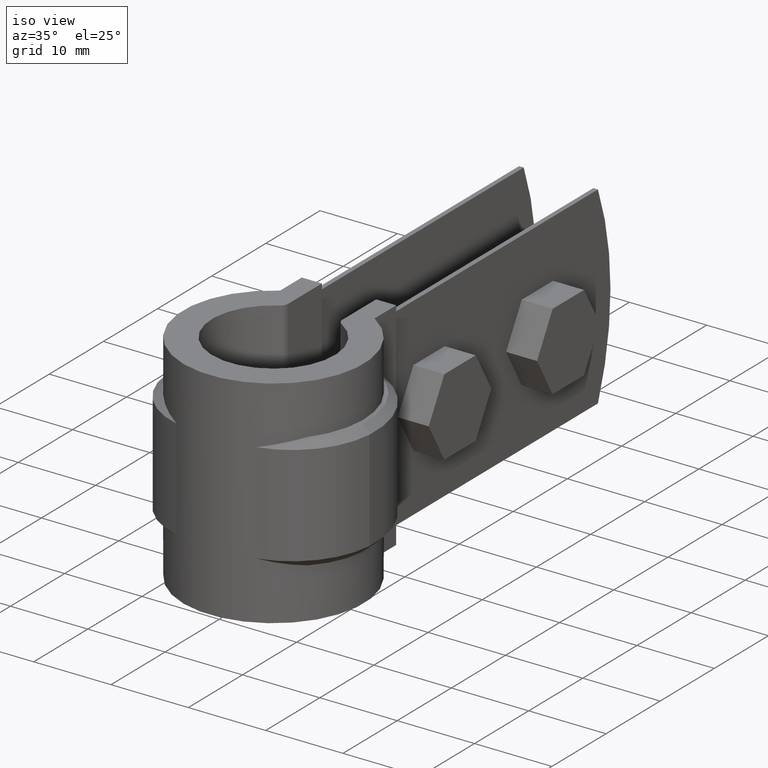
[diagram: clean part render]
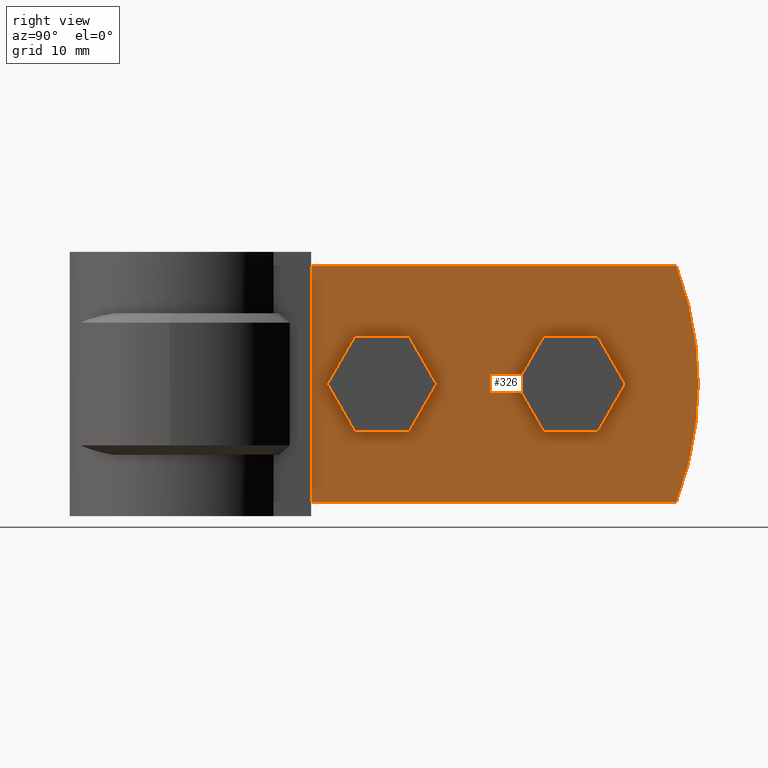
[diagram: tour spotlight — one face highlighted and labeled with its STEP entity id]
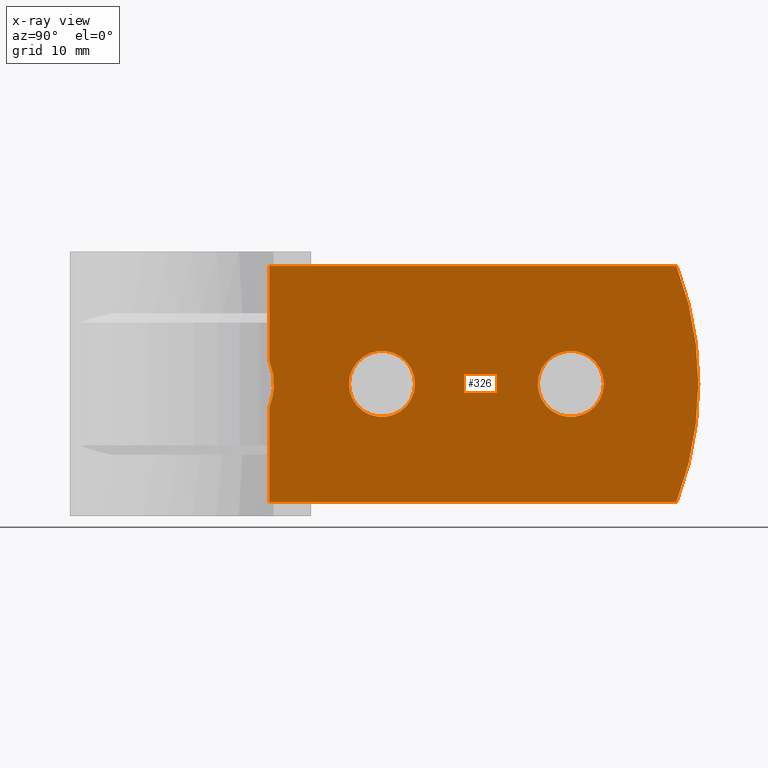
[diagram: x-ray of the same camera — body ghosted, this tour face saturated]
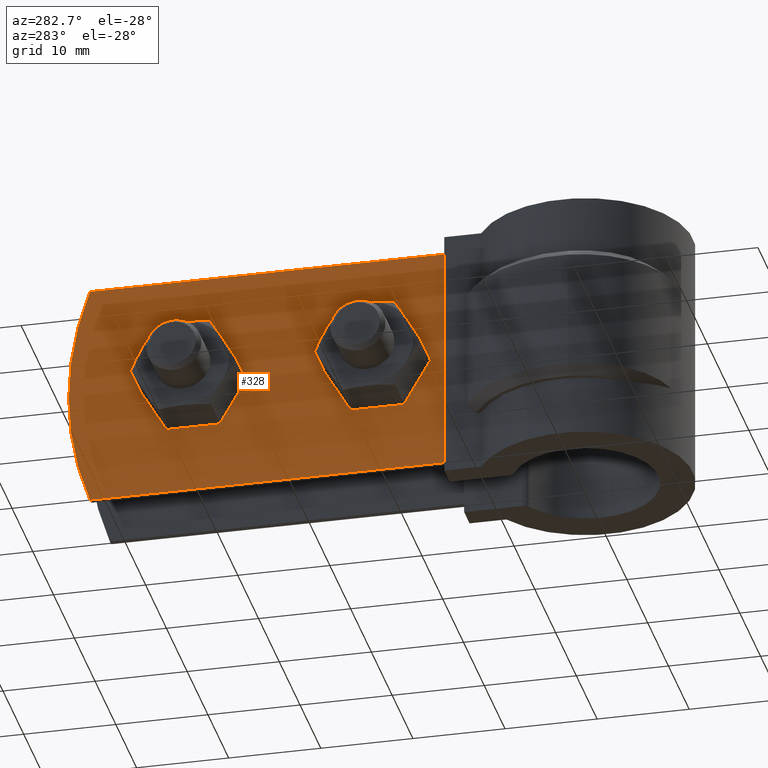
[diagram: tour spotlight — one face highlighted and labeled with its STEP entity id]
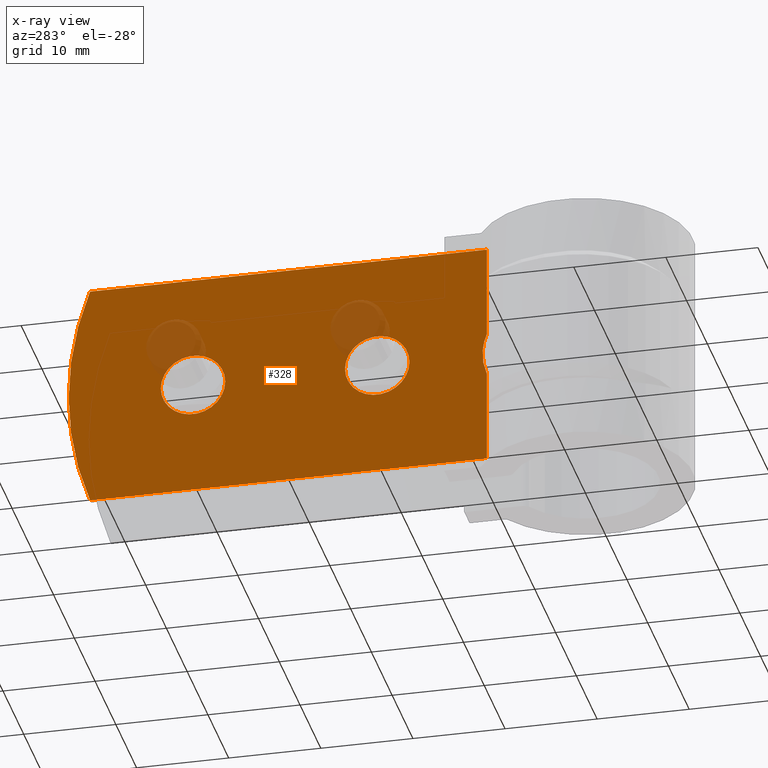
[diagram: x-ray of the same camera — body ghosted, this tour face saturated]
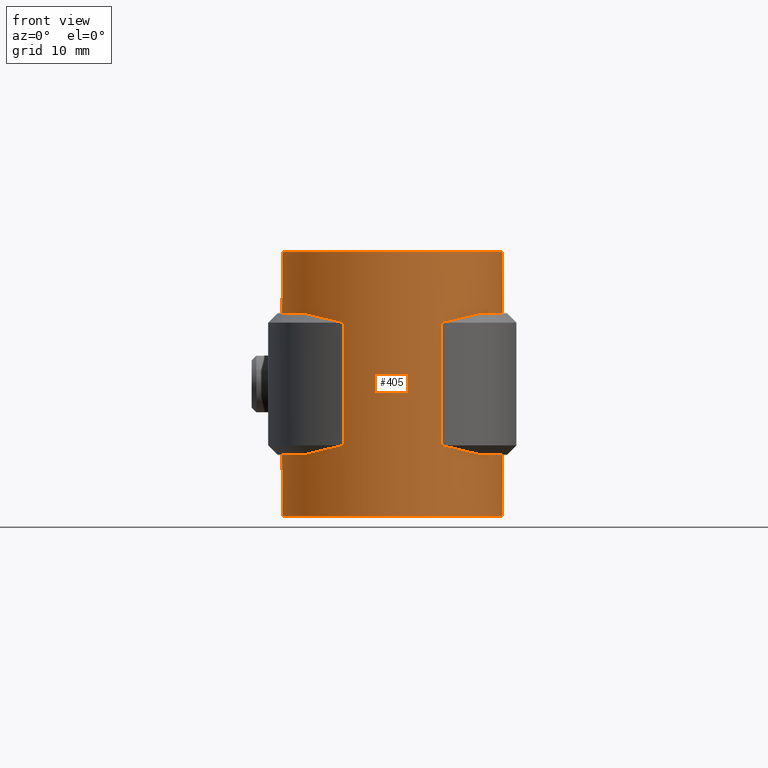
[diagram: tour spotlight — one face highlighted and labeled with its STEP entity id]
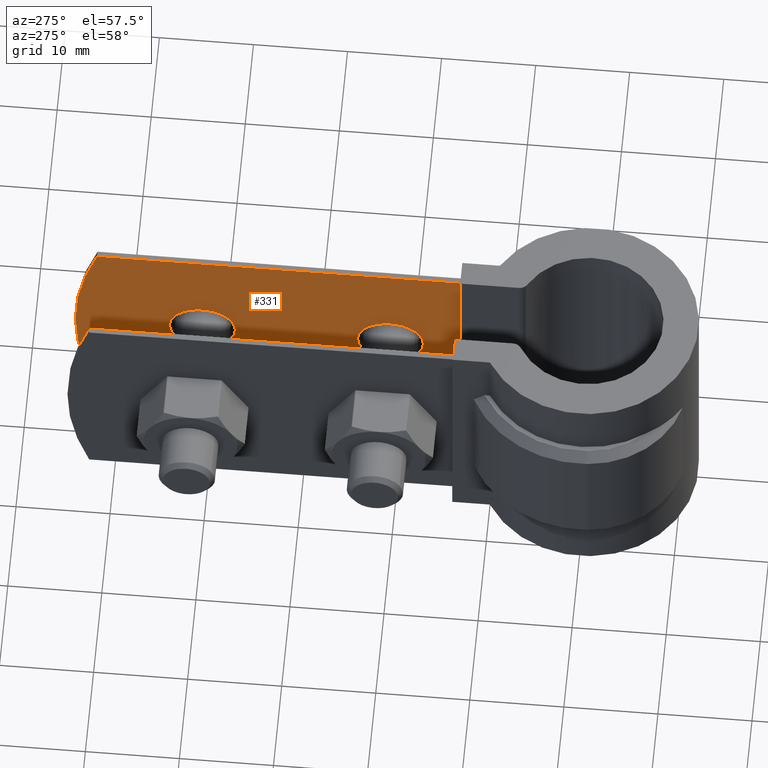
[diagram: tour spotlight — one face highlighted and labeled with its STEP entity id]
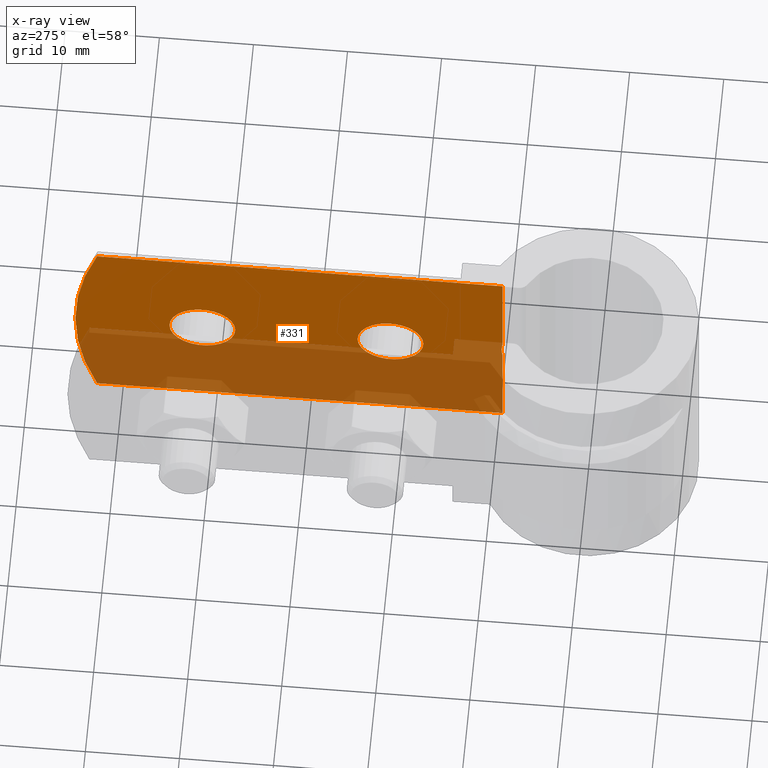
[diagram: x-ray of the same camera — body ghosted, this tour face saturated]
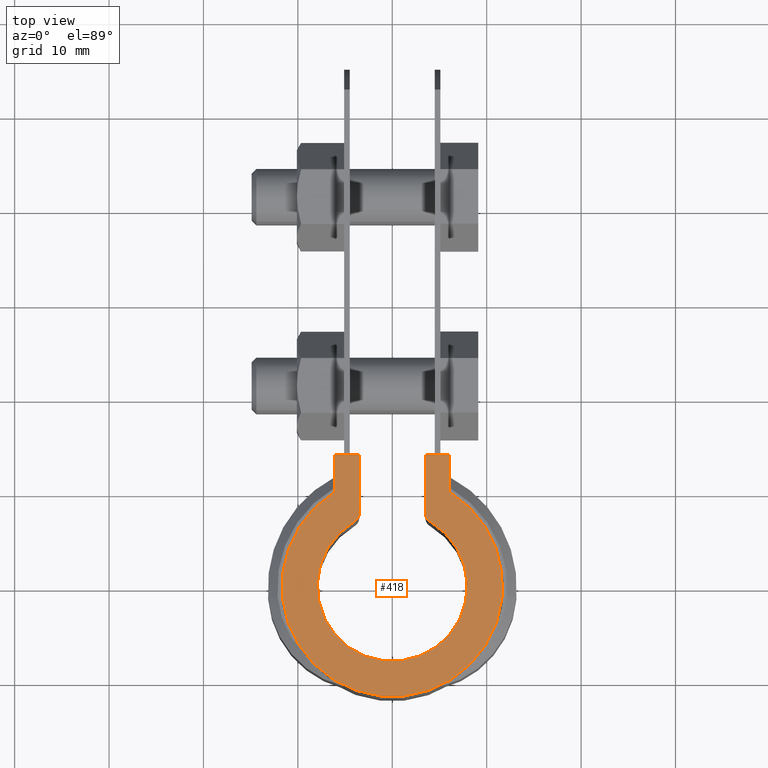
[diagram: tour spotlight — one face highlighted and labeled with its STEP entity id]
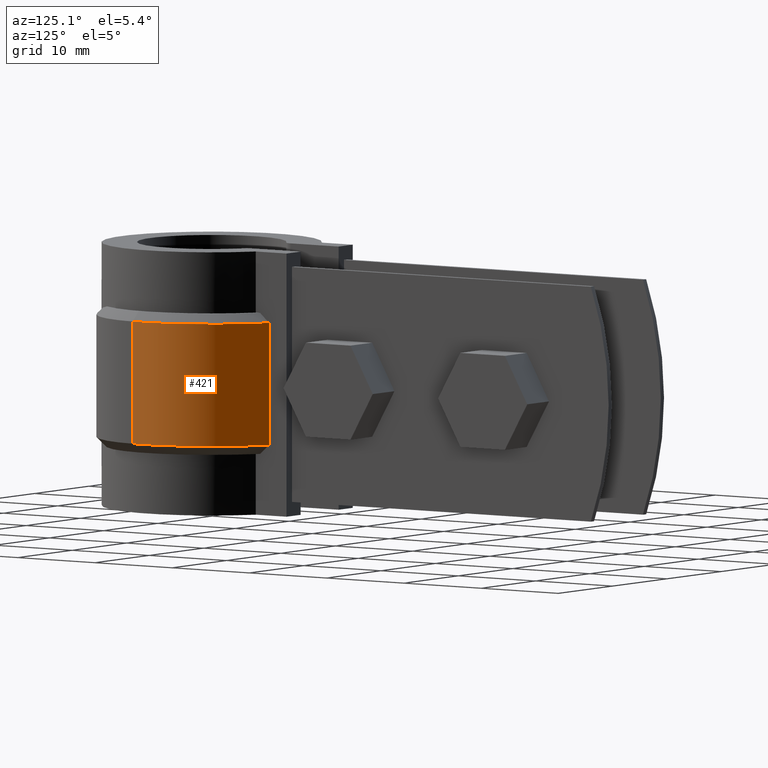
[diagram: tour spotlight — one face highlighted and labeled with its STEP entity id]
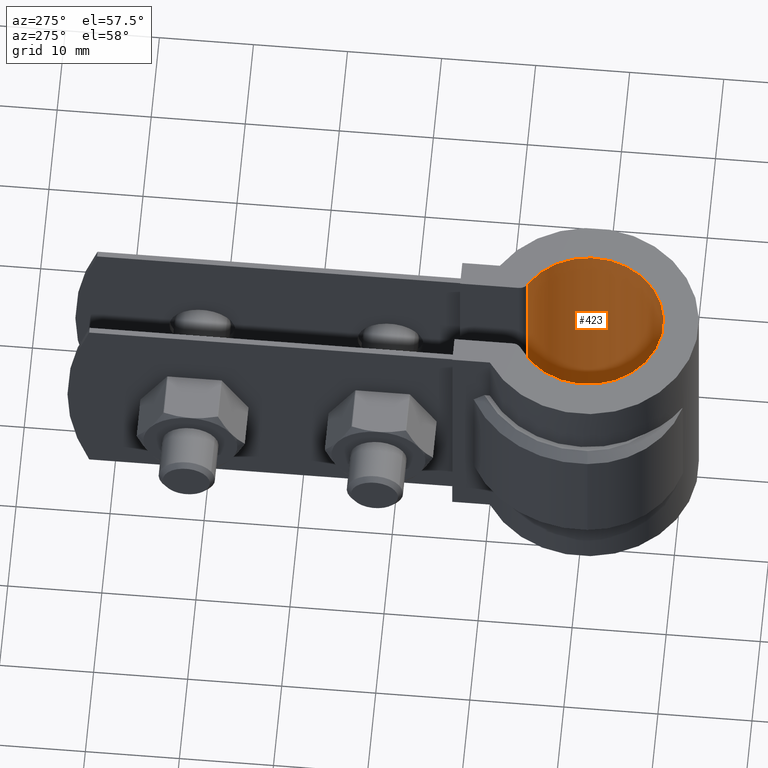
[diagram: tour spotlight — one face highlighted and labeled with its STEP entity id]
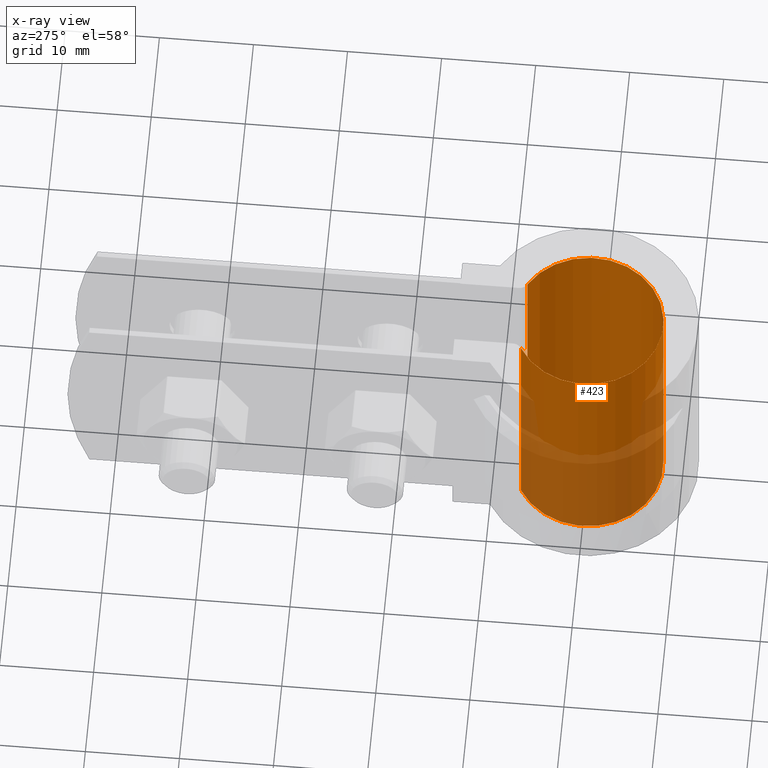
[diagram: x-ray of the same camera — body ghosted, this tour face saturated]
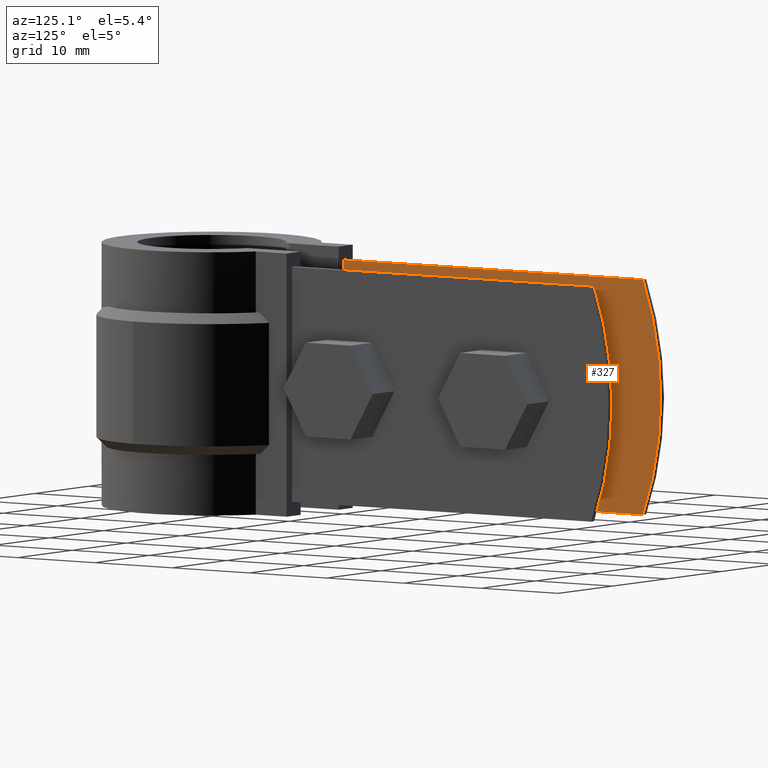
[diagram: tour spotlight — one face highlighted and labeled with its STEP entity id]
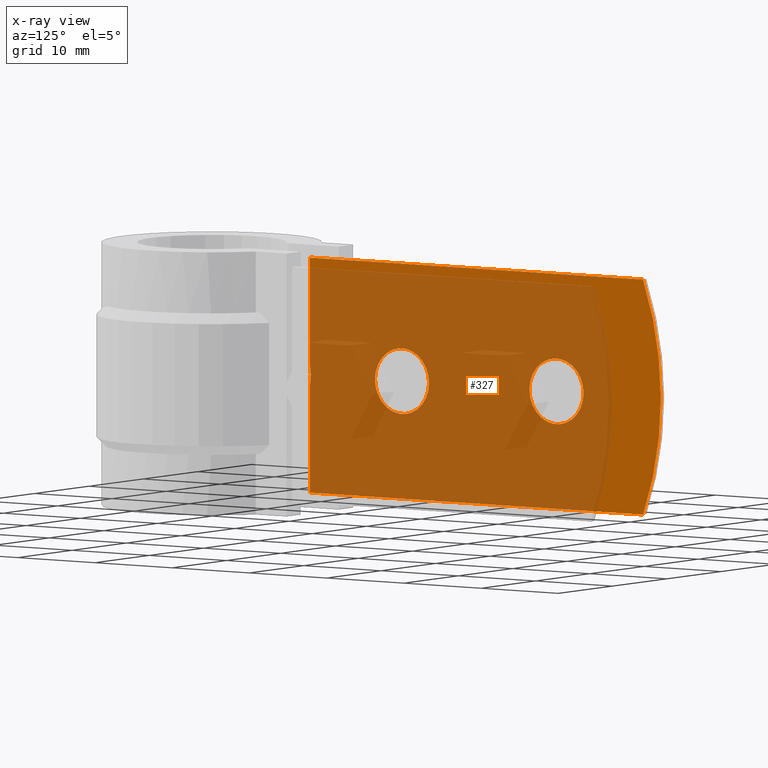
[diagram: x-ray of the same camera — body ghosted, this tour face saturated]
A machine part: a face-by-face anatomy tour. The part has 190 B-rep faces; the first image is the clean iso view, then the 8 largest visible faces are spotlighted one at a time (largest first), each with its STEP entity span.

Face 1 — right view, entity #326. An x-ray twin of the same camera follows (body ghosted, this face saturated) — the face is partly hidden behind the body. In plain terms, the highlighted planar face has unit normal (-1, 0, 0).
Definition (entity closure, byte-faithful):
#326 = ADVANCED_FACE( '', ( #528, #529, #530 ), #531, .F. );
#528 = FACE_BOUND( '', #938, .T. );
#529 = FACE_OUTER_BOUND( '', #939, .T. );
#530 = FACE_BOUND( '', #940, .T. );
#531 = PLANE( '', #941 );
#938 = EDGE_LOOP( '', ( #2309 ) );
#939 = EDGE_LOOP( '', ( #2310, #2311, #2312, #2313, #2314, #2315 ) );
#940 = EDGE_LOOP( '', ( #2316 ) );
#941 = AXIS2_PLACEMENT_3D( '', #2317, #2318, #2319 );
#2309 = ORIENTED_EDGE( '', *, *, #4433, .F. );
#2310 = ORIENTED_EDGE( '', *, *, #4425, .T. );
#2311 = ORIENTED_EDGE( '', *, *, #4416, .T. );
#2312 = ORIENTED_EDGE( '', *, *, #4430, .T. );
#2313 = ORIENTED_EDGE( '', *, *, #4434, .T. );
#2314 = ORIENTED_EDGE( '', *, *, #4435, .F. );
#2315 = ORIENTED_EDGE( '', *, *, #4396, .F. );
#2316 = ORIENTED_EDGE( '', *, *, #4436, .F. );
#2317 = CARTESIAN_POINT( '', ( 5.10000000000000, 9.54618248306621, 0.000000000000000 ) );
#2318 = DIRECTION( '', ( -1.00000000000000, 6.12303176911189E-017, 0.000000000000000 ) );
#2319 = DIRECTION( '', ( 6.12303176911189E-017, 1.00000000000000, 0.000000000000000 ) );
#4396 = EDGE_CURVE( '', #4918, #4920, #4921, .T. );
#4416 = EDGE_CURVE( '', #4958, #4956, #4959, .T. );
#4425 = EDGE_CURVE( '', #4918, #4958, #4972, .T. );
#4430 = EDGE_CURVE( '', #4956, #4979, #4980, .T. );
#4433 = EDGE_CURVE( '', #4984, #4984, #4985, .F. );
#4434 = EDGE_CURVE( '', #4979, #4986, #4987, .T. );
#4435 = EDGE_CURVE( '', #4920, #4986, #4988, .T. );
#4436 = EDGE_CURVE( '', #4989, #4989, #4990, .F. );
#4918 = VERTEX_POINT( '', #5855 );
#4920 = VERTEX_POINT( '', #5857 );
#4921 = LINE( '', #5858, #5859 );
#4956 = VERTEX_POINT( '', #6002 );
#4958 = VERTEX_POINT( '', #6013 );
#4959 = B_SPLINE_CURVE_WITH_KNOTS( '', 3, ( #6014, #6015, #6016, #6017, #6018, #6019, #6020, #6021, #6022, #6023 ), .UNSPECIFIED., .F., .F., ( 4, 2, 2, 2, 4 ), ( 3.46944695195361E-018, 0.00122789731250864, 0.00245579462501728, 0.00368369193752592, 0.00491158925003456 ), .UNSPECIFIED. );
#4972 = LINE( '', #6154, #6155 );
#4979 = VERTEX_POINT( '', #6178 );
#4980 = LINE( '', #6179, #6180 );
#4984 = VERTEX_POINT( '', #6185 );
#4985 = CIRCLE( '', #6186, 3.50000000000000 );
#4986 = VERTEX_POINT( '', #6187 );
#4987 = LINE( '', #6188, #6189 );
#4988 = CIRCLE( '', #6190, 35.0000000000000 );
#4989 = VERTEX_POINT( '', #6191 );
#4990 = CIRCLE( '', #6192, 3.50000000000000 );
#5855 = CARTESIAN_POINT( '', ( 5.10000000000000, 9.54618248306621, 0.000000000000000 ) );
#5857 = CARTESIAN_POINT( '', ( 5.09999999999998, 52.6472181779583, 4.65872389190766E-031 ) );
#5858 = CARTESIAN_POINT( '', ( 5.10000000000000, 9.54618248306621, 0.000000000000000 ) );
#5859 = VECTOR( '', #8263, 1000.00000000000 );
#6002 = CARTESIAN_POINT( '', ( 5.10000000000000, 9.54618248306621, -14.9137184247947 ) );
#6013 = CARTESIAN_POINT( '', ( 5.10000000000000, 9.54618248306621, -10.0862815752053 ) );
#6014 = CARTESIAN_POINT( '', ( 5.10000000000000, 9.54618248306621, -10.0862815752053 ) );
#6015 = CARTESIAN_POINT( '', ( 5.10000000000000, 9.70232047986149, -10.4734165991022 ) );
#6016 = CARTESIAN_POINT( '', ( 5.09999999999994, 9.81833738479104, -10.8680846588988 ) );
#6017 = CARTESIAN_POINT( '', ( 5.09999999999994, 9.97519419553779, -11.6715358238912 ) );
#6018 = CARTESIAN_POINT( '', ( 5.10000000000000, 10.0160405807230, -12.0803177125371 ) );
#6019 = CARTESIAN_POINT( '', ( 5.10000000000000, 10.0164716174228, -12.9131389897759 ) );
#6020 = CARTESIAN_POINT( '', ( 5.10000000000000, 9.97563247072795, -13.3256423648655 ) );
#6021 = CARTESIAN_POINT( '', ( 5.10000000000000, 9.81856702657030, -14.1313135051362 ) );
#6022 = CARTESIAN_POINT( '', ( 5.10000000000000, 9.70233662319714, -14.5265433744420 ) );
#6023 = CARTESIAN_POINT( '', ( 5.10000000000000, 9.54618248306621, -14.9137184247947 ) );
#6154 = CARTESIAN_POINT( '', ( 5.10000000000000, 9.54618248306621, 0.000000000000000 ) );
#6155 = VECTOR( '', #8282, 1000.00000000000 );
#6178 = CARTESIAN_POINT( '', ( 5.10000000000000, 9.54618248306621, -25.0000000000000 ) );
#6179 = CARTESIAN_POINT( '', ( 5.10000000000000, 9.54618248306621, 0.000000000000000 ) );
#6180 = VECTOR( '', #8286, 1000.00000000000 );
#6185 = CARTESIAN_POINT( '', ( 5.10000000000000, 37.9554761014033, -12.5000000000000 ) );
#6186 = AXIS2_PLACEMENT_3D( '', #8291, #8292, #8293 );
#6187 = CARTESIAN_POINT( '', ( 5.09999999999998, 52.6472181779583, -25.0000000000000 ) );
#6188 = CARTESIAN_POINT( '', ( 5.10000000000000, 9.54618248306621, -25.0000000000000 ) );
#6189 = VECTOR( '', #8294, 1000.00000000000 );
#6190 = AXIS2_PLACEMENT_3D( '', #8295, #8296, #8297 );
#6191 = CARTESIAN_POINT( '', ( 5.10000000000000, 17.9554761014033, -12.5000000000000 ) );
#6192 = AXIS2_PLACEMENT_3D( '', #8298, #8299, #8300 );
#8263 = DIRECTION( '', ( 6.12303176911189E-017, 1.00000000000000, 0.000000000000000 ) );
#8282 = DIRECTION( '', ( 0.000000000000000, 0.000000000000000, -1.00000000000000 ) );
#8286 = DIRECTION( '', ( 0.000000000000000, 0.000000000000000, -1.00000000000000 ) );
#8291 = CARTESIAN_POINT( '', ( 5.10000000000000, 41.4554761014033, -12.5000000000000 ) );
#8292 = DIRECTION( '', ( -1.00000000000000, 6.12303176911189E-017, 0.000000000000000 ) );
#8293 = DIRECTION( '', ( -6.12303176911189E-017, -1.00000000000000, 0.000000000000000 ) );
#8294 = DIRECTION( '', ( 6.12303176911189E-017, 1.00000000000000, 0.000000000000000 ) );
#8295 = CARTESIAN_POINT( '', ( 5.10000000000001, 19.9554761014033, -12.5000000000000 ) );
#8296 = DIRECTION( '', ( -1.00000000000000, 6.12303176911189E-017, 0.000000000000000 ) );
#8297 = DIRECTION( '', ( -6.12303176911189E-017, -1.00000000000000, 0.000000000000000 ) );
#8298 = CARTESIAN_POINT( '', ( 5.10000000000000, 21.4554761014033, -12.5000000000000 ) );
#8299 = DIRECTION( '', ( -1.00000000000000, 6.12303176911189E-017, 0.000000000000000 ) );
#8300 = DIRECTION( '', ( -6.12303176911189E-017, -1.00000000000000, 0.000000000000000 ) );

Face 2 — auxiliary view, entity #328. An x-ray twin of the same camera follows (body ghosted, this face saturated) — the face is partly hidden behind the body. In plain terms, the highlighted planar face has unit normal (1, -0, 0).
Definition (entity closure, byte-faithful):
#328 = ADVANCED_FACE( '', ( #536, #537, #538 ), #539, .F. );
#536 = FACE_BOUND( '', #946, .T. );
#537 = FACE_OUTER_BOUND( '', #947, .T. );
#538 = FACE_BOUND( '', #948, .T. );
#539 = PLANE( '', #949 );
#946 = EDGE_LOOP( '', ( #2331 ) );
#947 = EDGE_LOOP( '', ( #2332, #2333, #2334, #2335, #2336, #2337 ) );
#948 = EDGE_LOOP( '', ( #2338 ) );
#949 = AXIS2_PLACEMENT_3D( '', #2339, #2340, #2341 );
#2331 = ORIENTED_EDGE( '', *, *, #4443, .F. );
#2332 = ORIENTED_EDGE( '', *, *, #4444, .F. );
#2333 = ORIENTED_EDGE( '', *, *, #4420, .T. );
#2334 = ORIENTED_EDGE( '', *, *, #4429, .F. );
#2335 = ORIENTED_EDGE( '', *, *, #4393, .F. );
#2336 = ORIENTED_EDGE( '', *, *, #4445, .F. );
#2337 = ORIENTED_EDGE( '', *, *, #4446, .T. );
#2338 = ORIENTED_EDGE( '', *, *, #4447, .F. );
#2339 = CARTESIAN_POINT( '', ( -5.10000000000000, 54.9554761014033, 0.000000000000000 ) );
#2340 = DIRECTION( '', ( 1.00000000000000, -6.12303176911189E-017, 0.000000000000000 ) );
#2341 = DIRECTION( '', ( -6.12303176911189E-017, -1.00000000000000, 0.000000000000000 ) );
#4393 = EDGE_CURVE( '', #4912, #4915, #4916, .T. );
#4420 = EDGE_CURVE( '', #4964, #4962, #4965, .T. );
#4429 = EDGE_CURVE( '', #4915, #4962, #4978, .T. );
#4443 = EDGE_CURVE( '', #5002, #5002, #5003, .F. );
#4444 = EDGE_CURVE( '', #4964, #5004, #5005, .T. );
#4445 = EDGE_CURVE( '', #5006, #4912, #5007, .T. );
#4446 = EDGE_CURVE( '', #5006, #5004, #5008, .T. );
#4447 = EDGE_CURVE( '', #5009, #5009, #5010, .F. );
#4912 = VERTEX_POINT( '', #5847 );
#4915 = VERTEX_POINT( '', #5851 );
#4916 = LINE( '', #5852, #5853 );
#4962 = VERTEX_POINT( '', #6060 );
#4964 = VERTEX_POINT( '', #6071 );
#4965 = B_SPLINE_CURVE_WITH_KNOTS( '', 3, ( #6072, #6073, #6074, #6075, #6076, #6077, #6078, #6079, #6080, #6081 ), .UNSPECIFIED., .F., .F., ( 4, 2, 2, 2, 4 ), ( 0.000000000000000, 0.00122789731250863, 0.00245579462501726, 0.00368369193752589, 0.00491158925003452 ), .UNSPECIFIED. );
#4978 = LINE( '', #6176, #6177 );
#5002 = VERTEX_POINT( '', #6210 );
#5003 = CIRCLE( '', #6211, 3.50000000000000 );
#5004 = VERTEX_POINT( '', #6212 );
#5005 = LINE( '', #6213, #6214 );
#5006 = VERTEX_POINT( '', #6215 );
#5007 = CIRCLE( '', #6216, 35.0000000000000 );
#5008 = LINE( '', #6217, #6218 );
#5009 = VERTEX_POINT( '', #6219 );
#5010 = CIRCLE( '', #6220, 3.50000000000000 );
#5847 = CARTESIAN_POINT( '', ( -5.10000000000002, 52.6472181779583, 4.03010035805967E-031 ) );
#5851 = CARTESIAN_POINT( '', ( -5.10000000000000, 9.54618248306622, 0.000000000000000 ) );
#5852 = CARTESIAN_POINT( '', ( -5.10000000000000, 54.9554761014033, 0.000000000000000 ) );
#5853 = VECTOR( '', #8256, 1000.00000000000 );
#6060 = CARTESIAN_POINT( '', ( -5.10000000000000, 9.54618248306622, -10.0862815752053 ) );
#6071 = CARTESIAN_POINT( '', ( -5.10000000000000, 9.54618248306622, -14.9137184247947 ) );
#6072 = CARTESIAN_POINT( '', ( -5.10000000000000, 9.54618248306622, -14.9137184247947 ) );
#6073 = CARTESIAN_POINT( '', ( -5.10000000000000, 9.70232047986149, -14.5265834008979 ) );
#6074 = CARTESIAN_POINT( '', ( -5.09999999999994, 9.81833738479104, -14.1319153411013 ) );
#6075 = CARTESIAN_POINT( '', ( -5.09999999999994, 9.97519419553780, -13.3284641761089 ) );
#6076 = CARTESIAN_POINT( '', ( -5.10000000000000, 10.0160405807230, -12.9196822874630 ) );
#6077 = CARTESIAN_POINT( '', ( -5.10000000000000, 10.0164716174228, -12.0868610102241 ) );
#6078 = CARTESIAN_POINT( '', ( -5.10000000000000, 9.97563247072796, -11.6743576351346 ) );
#6079 = CARTESIAN_POINT( '', ( -5.10000000000000, 9.81856702657031, -10.8686864948638 ) );
#6080 = CARTESIAN_POINT( '', ( -5.10000000000000, 9.70233662319715, -10.4734566255580 ) );
#6081 = CARTESIAN_POINT( '', ( -5.10000000000000, 9.54618248306622, -10.0862815752053 ) );
#6176 = CARTESIAN_POINT( '', ( -5.10000000000000, 9.54618248306622, 0.000000000000000 ) );
#6177 = VECTOR( '', #8285, 1000.00000000000 );
#6210 = CARTESIAN_POINT( '', ( -5.09999999999999, 44.9554761014033, -12.5000000000000 ) );
#6211 = AXIS2_PLACEMENT_3D( '', #8312, #8313, #8314 );
#6212 = CARTESIAN_POINT( '', ( -5.10000000000000, 9.54618248306622, -25.0000000000000 ) );
#6213 = CARTESIAN_POINT( '', ( -5.10000000000000, 9.54618248306622, 0.000000000000000 ) );
#6214 = VECTOR( '', #8315, 1000.00000000000 );
#6215 = CARTESIAN_POINT( '', ( -5.10000000000002, 52.6472181779583, -25.0000000000000 ) );
#6216 = AXIS2_PLACEMENT_3D( '', #8316, #8317, #8318 );
#6217 = CARTESIAN_POINT( '', ( -5.10000000000000, 54.9554761014033, -25.0000000000000 ) );
#6218 = VECTOR( '', #8319, 1000.00000000000 );
#6219 = CARTESIAN_POINT( '', ( -5.09999999999999, 24.9554761014033, -12.5000000000000 ) );
#6220 = AXIS2_PLACEMENT_3D( '', #8320, #8321, #8322 );
#8256 = DIRECTION( '', ( -6.12303176911189E-017, -1.00000000000000, 0.000000000000000 ) );
#8285 = DIRECTION( '', ( 0.000000000000000, 0.000000000000000, -1.00000000000000 ) );
#8312 = CARTESIAN_POINT( '', ( -5.09999999999999, 41.4554761014033, -12.5000000000000 ) );
#8313 = DIRECTION( '', ( 1.00000000000000, -6.12303176911189E-017, 0.000000000000000 ) );
#8314 = DIRECTION( '', ( 6.12303176911189E-017, 1.00000000000000, 0.000000000000000 ) );
#8315 = DIRECTION( '', ( 0.000000000000000, 0.000000000000000, -1.00000000000000 ) );
#8316 = CARTESIAN_POINT( '', ( -5.09999999999999, 19.9554761014033, -12.5000000000000 ) );
#8317 = DIRECTION( '', ( 1.00000000000000, -6.12303176911189E-017, 0.000000000000000 ) );
#8318 = DIRECTION( '', ( 6.12303176911189E-017, 1.00000000000000, 0.000000000000000 ) );
#8319 = DIRECTION( '', ( -6.12303176911189E-017, -1.00000000000000, 0.000000000000000 ) );
#8320 = CARTESIAN_POINT( '', ( -5.09999999999999, 21.4554761014033, -12.5000000000000 ) );
#8321 = DIRECTION( '', ( 1.00000000000000, -6.12303176911189E-017, 0.000000000000000 ) );
#8322 = DIRECTION( '', ( 6.12303176911189E-017, 1.00000000000000, 0.000000000000000 ) );

Face 3 — front view, entity #405. In plain terms, the highlighted cylindrical surface (partial cylindrical patch) has radius 11.685 mm, axis along (0, 0, -1).
Definition (entity closure, byte-faithful):
#405 = ADVANCED_FACE( '', ( #699 ), #700, .T. );
#699 = FACE_OUTER_BOUND( '', #1685, .T. );
#700 = CYLINDRICAL_SURFACE( '', #1686, 11.6850000000000 );
#1685 = EDGE_LOOP( '', ( #3634, #3635, #3636, #3637, #3638, #3639, #3640, #3641, #3642, #3643, #3644, #3645, #3646, #3647, #3648, #3649 ) );
#1686 = AXIS2_PLACEMENT_3D( '', #3650, #3651, #3652 );
#3634 = ORIENTED_EDGE( '', *, *, #4531, .T. );
#3635 = ORIENTED_EDGE( '', *, *, #4686, .T. );
#3636 = ORIENTED_EDGE( '', *, *, #4687, .T. );
#3637 = ORIENTED_EDGE( '', *, *, #4688, .F. );
#3638 = ORIENTED_EDGE( '', *, *, #4689, .T. );
#3639 = ORIENTED_EDGE( '', *, *, #4690, .F. );
#3640 = ORIENTED_EDGE( '', *, *, #4525, .T. );
#3641 = ORIENTED_EDGE( '', *, *, #4691, .F. );
#3642 = ORIENTED_EDGE( '', *, *, #4541, .F. );
#3643 = ORIENTED_EDGE( '', *, *, #4692, .F. );
#3644 = ORIENTED_EDGE( '', *, *, #4693, .T. );
#3645 = ORIENTED_EDGE( '', *, *, #4694, .F. );
#3646 = ORIENTED_EDGE( '', *, *, #4695, .T. );
#3647 = ORIENTED_EDGE( '', *, *, #4696, .T. );
#3648 = ORIENTED_EDGE( '', *, *, #4535, .F. );
#3649 = ORIENTED_EDGE( '', *, *, #4680, .T. );
#3650 = CARTESIAN_POINT( '', ( 0.000000000000000, 1.04083408558608E-014, -26.5000000000000 ) );
#3651 = DIRECTION( '', ( 0.000000000000000, 0.000000000000000, -1.00000000000000 ) );
#3652 = DIRECTION( '', ( 0.000000000000000, 1.00000000000000, 0.000000000000000 ) );
#4525 = EDGE_CURVE( '', #5133, #5131, #5134, .T. );
#4531 = EDGE_CURVE( '', #5126, #5143, #5145, .T. );
#4535 = EDGE_CURVE( '', #5151, #5153, #5154, .T. );
#4541 = EDGE_CURVE( '', #5163, #5147, #5165, .T. );
#4680 = EDGE_CURVE( '', #5151, #5126, #5399, .T. );
#4686 = EDGE_CURVE( '', #5143, #5409, #5410, .F. );
#4687 = EDGE_CURVE( '', #5409, #5411, #5412, .T. );
#4688 = EDGE_CURVE( '', #5413, #5411, #5414, .F. );
#4689 = EDGE_CURVE( '', #5413, #5415, #5416, .T. );
#4690 = EDGE_CURVE( '', #5133, #5415, #5417, .F. );
#4691 = EDGE_CURVE( '', #5147, #5131, #5418, .T. );
#4692 = EDGE_CURVE( '', #5419, #5163, #5420, .F. );
#4693 = EDGE_CURVE( '', #5419, #5421, #5422, .T. );
#4694 = EDGE_CURVE( '', #5423, #5421, #5424, .T. );
#4695 = EDGE_CURVE( '', #5423, #5425, #5426, .T. );
#4696 = EDGE_CURVE( '', #5425, #5153, #5427, .F. );
#5126 = VERTEX_POINT( '', #6668 );
#5131 = VERTEX_POINT( '', #6675 );
#5133 = VERTEX_POINT( '', #6678 );
#5134 = LINE( '', #6679, #6680 );
#5143 = VERTEX_POINT( '', #6697 );
#5145 = LINE( '', #6700, #6701 );
#5147 = VERTEX_POINT( '', #6703 );
#5151 = VERTEX_POINT( '', #6709 );
#5153 = VERTEX_POINT( '', #6712 );
#5154 = LINE( '', #6713, #6714 );
#5163 = VERTEX_POINT( '', #6731 );
#5165 = LINE( '', #6734, #6735 );
#5399 = CIRCLE( '', #7673, 11.6850000000000 );
#5409 = VERTEX_POINT( '', #7685 );
#5410 = CIRCLE( '', #7686, 11.6850000000000 );
#5411 = VERTEX_POINT( '', #7687 );
#5412 = B_SPLINE_CURVE_WITH_KNOTS( '', 3, ( #7688, #7689, #7690, #7691, #7692, #7693, #7694, #7695 ), .UNSPECIFIED., .F., .F., ( 4, 2, 2, 4 ), ( 4.33680868994202E-018, 0.00277693447100946, 0.00416540170651419, 0.00555386894201892 ), .UNSPECIFIED. );
#5413 = VERTEX_POINT( '', #7696 );
#5414 = LINE( '', #7697, #7698 );
#5415 = VERTEX_POINT( '', #7699 );
#5416 = B_SPLINE_CURVE_WITH_KNOTS( '', 3, ( #7700, #7701, #7702, #7703, #7704, #7705, #7706, #7707 ), .UNSPECIFIED., .F., .F., ( 4, 2, 2, 4 ), ( 0.000000000000000, 0.00277665507141476, 0.00416498260712215, 0.00555331014282953 ), .UNSPECIFIED. );
#5417 = CIRCLE( '', #7708, 11.6850000000000 );
#5418 = CIRCLE( '', #7709, 11.6850000000000 );
#5419 = VERTEX_POINT( '', #7710 );
#5420 = CIRCLE( '', #7711, 11.6850000000000 );
#5421 = VERTEX_POINT( '', #7712 );
#5422 = B_SPLINE_CURVE_WITH_KNOTS( '', 3, ( #7713, #7714, #7715, #7716, #7717, #7718, #7719, #7720 ), .UNSPECIFIED., .F., .F., ( 4, 2, 2, 4 ), ( 6.82961315453726E-018, 0.00277693447100946, 0.00416540170651419, 0.00555386894201892 ), .UNSPECIFIED. );
#5423 = VERTEX_POINT( '', #7721 );
#5424 = LINE( '', #7722, #7723 );
#5425 = VERTEX_POINT( '', #7724 );
#5426 = B_SPLINE_CURVE_WITH_KNOTS( '', 3, ( #7725, #7726, #7727, #7728, #7729, #7730, #7731, #7732 ), .UNSPECIFIED., .F., .F., ( 4, 2, 2, 4 ), ( 0.000000000000000, 0.00277665507141476, 0.00416498260712215, 0.00555331014282953 ), .UNSPECIFIED. );
#5427 = CIRCLE( '', #7733, 11.6850000000000 );
#6668 = CARTESIAN_POINT( '', ( 6.09999999999998, 9.96640481818797, -26.5000000000000 ) );
#6675 = CARTESIAN_POINT( '', ( 6.09999999999998, 9.96640481818797, 1.50000000000000 ) );
#6678 = CARTESIAN_POINT( '', ( 6.09999999999998, 9.96640481818797, -5.00000000000000 ) );
#6679 = CARTESIAN_POINT( '', ( 6.09999999999998, 9.96640481818797, -26.5000000000000 ) );
#6680 = VECTOR( '', #8405, 1000.00000000000 );
#6697 = CARTESIAN_POINT( '', ( 6.09999999999998, 9.96640481818797, -20.0000000000000 ) );
#6700 = CARTESIAN_POINT( '', ( 6.09999999999998, 9.96640481818797, -26.5000000000000 ) );
#6701 = VECTOR( '', #8409, 1000.00000000000 );
#6703 = CARTESIAN_POINT( '', ( -6.10000000000003, 9.96640481818794, 1.50000000000000 ) );
#6709 = CARTESIAN_POINT( '', ( -6.10000000000003, 9.96640481818794, -26.5000000000000 ) );
#6712 = CARTESIAN_POINT( '', ( -6.10000000000003, 9.96640481818794, -20.0000000000000 ) );
#6713 = CARTESIAN_POINT( '', ( -6.10000000000003, 9.96640481818794, -26.5000000000000 ) );
#6714 = VECTOR( '', #8413, 1000.00000000000 );
#6731 = CARTESIAN_POINT( '', ( -6.10000000000003, 9.96640481818795, -5.00000000000000 ) );
#6734 = CARTESIAN_POINT( '', ( -6.10000000000003, 9.96640481818794, -26.5000000000000 ) );
#6735 = VECTOR( '', #8417, 1000.00000000000 );
#7673 = AXIS2_PLACEMENT_3D( '', #8550, #8551, #8552 );
#7685 = CARTESIAN_POINT( '', ( 9.36374855338443, -6.98995264855141, -20.0000000000000 ) );
#7686 = AXIS2_PLACEMENT_3D( '', #8564, #8565, #8566 );
#7687 = CARTESIAN_POINT( '', ( 5.17424711952811, -10.4769457260241, -19.0000000000000 ) );
#7688 = CARTESIAN_POINT( '', ( 9.36374855338443, -6.98995264855141, -20.0000000000000 ) );
#7689 = CARTESIAN_POINT( '', ( 8.80777141071310, -7.73474026402723, -19.8662567322832 ) );
#7690 = CARTESIAN_POINT( '', ( 8.17732976921467, -8.39659906995328, -19.7135949908877 ) );
#7691 = CARTESIAN_POINT( '', ( 7.12557712528804, -9.27218792441018, -19.4614185974445 ) );
#7692 = CARTESIAN_POINT( '', ( 6.75595603801261, -9.54504092295829, -19.3731627320375 ) );
#7693 = CARTESIAN_POINT( '', ( 5.98484098098964, -10.0465131583438, -19.1902773140702 ) );
#7694 = CARTESIAN_POINT( '', ( 5.58611941732225, -10.2735344355388, -19.0963034165744 ) );
#7695 = CARTESIAN_POINT( '', ( 5.17424711952811, -10.4769457260241, -19.0000000000000 ) );
#7696 = CARTESIAN_POINT( '', ( 5.17424711952811, -10.4769457260241, -6.00000000000000 ) );
#7697 = CARTESIAN_POINT( '', ( 5.17424711952811, -10.4769457260241, -12.5000000000000 ) );
#7698 = VECTOR( '', #8567, 1000.00000000000 );
#7699 = CARTESIAN_POINT( '', ( 9.36374855338443, -6.98995264855141, -4.99999999999999 ) );
#7700 = CARTESIAN_POINT( '', ( 5.17424711952811, -10.4769457260241, -6.00000000000000 ) );
#7701 = CARTESIAN_POINT( '', ( 5.99812038289876, -10.0700595999213, -5.80736308192648 ) );
#7702 = CARTESIAN_POINT( '', ( 6.76012271471013, -9.57453056652368, -5.62618566399187 ) );
#7703 = CARTESIAN_POINT( '', ( 7.81281671051148, -8.70097910983364, -5.37381316001744 ) );
#7704 = CARTESIAN_POINT( '', ( 8.14915820169521, -8.38717719181263, -5.29280727259839 ) );
#7705 = CARTESIAN_POINT( '', ( 8.78712108340776, -7.71621822583117, -5.13897519271562 ) );
#7706 = CARTESIAN_POINT( '', ( 9.08572746453961, -7.36239001678172, -5.06687945611871 ) );
#7707 = CARTESIAN_POINT( '', ( 9.36374855338443, -6.98995264855141, -5.00000000000000 ) );
#7708 = AXIS2_PLACEMENT_3D( '', #8568, #8569, #8570 );
#7709 = AXIS2_PLACEMENT_3D( '', #8571, #8572, #8573 );
#7710 = CARTESIAN_POINT( '', ( -9.36374855338443, -6.98995264855141, -4.99999999999999 ) );
#7711 = AXIS2_PLACEMENT_3D( '', #8574, #8575, #8576 );
#7712 = CARTESIAN_POINT( '', ( -5.17424711952811, -10.4769457260241, -6.00000000000000 ) );
#7713 = CARTESIAN_POINT( '', ( -9.36374855338443, -6.98995264855141, -5.00000000000000 ) );
#7714 = CARTESIAN_POINT( '', ( -8.80777141071310, -7.73474026402723, -5.13374326771682 ) );
#7715 = CARTESIAN_POINT( '', ( -8.17732976921466, -8.39659906995328, -5.28640500911235 ) );
#7716 = CARTESIAN_POINT( '', ( -7.12557712528804, -9.27218792441017, -5.53858140255554 ) );
#7717 = CARTESIAN_POINT( '', ( -6.75595603801261, -9.54504092295829, -5.62683726796246 ) );
#7718 = CARTESIAN_POINT( '', ( -5.98484098098964, -10.0465131583438, -5.80972268592979 ) );
#7719 = CARTESIAN_POINT( '', ( -5.58611941732225, -10.2735344355388, -5.90369658342556 ) );
#7720 = CARTESIAN_POINT( '', ( -5.17424711952811, -10.4769457260241, -6.00000000000000 ) );
#7721 = CARTESIAN_POINT( '', ( -5.17424711952811, -10.4769457260241, -19.0000000000000 ) );
#7722 = CARTESIAN_POINT( '', ( -5.17424711952811, -10.4769457260241, -12.5000000000000 ) );
#7723 = VECTOR( '', #8577, 1000.00000000000 );
#7724 = CARTESIAN_POINT( '', ( -9.36374855338443, -6.98995264855141, -20.0000000000000 ) );
#7725 = CARTESIAN_POINT( '', ( -5.17424711952811, -10.4769457260241, -19.0000000000000 ) );
#7726 = CARTESIAN_POINT( '', ( -5.99812038289877, -10.0700595999213, -19.1926369180735 ) );
#7727 = CARTESIAN_POINT( '', ( -6.76012271471013, -9.57453056652368, -19.3738143360081 ) );
#7728 = CARTESIAN_POINT( '', ( -7.81281671051148, -8.70097910983365, -19.6261868399826 ) );
#7729 = CARTESIAN_POINT( '', ( -8.14915820169521, -8.38717719181263, -19.7071927274016 ) );
#7730 = CARTESIAN_POINT( '', ( -8.78712108340776, -7.71621822583118, -19.8610248072844 ) );
#7731 = CARTESIAN_POINT( '', ( -9.08572746453961, -7.36239001678172, -19.9331205438813 ) );
#7732 = CARTESIAN_POINT( '', ( -9.36374855338443, -6.98995264855141, -20.0000000000000 ) );
#7733 = AXIS2_PLACEMENT_3D( '', #8578, #8579, #8580 );
#8405 = DIRECTION( '', ( 0.000000000000000, 0.000000000000000, 1.00000000000000 ) );
#8409 = DIRECTION( '', ( 0.000000000000000, 0.000000000000000, 1.00000000000000 ) );
#8413 = DIRECTION( '', ( 0.000000000000000, 0.000000000000000, 1.00000000000000 ) );
#8417 = DIRECTION( '', ( 0.000000000000000, 0.000000000000000, 1.00000000000000 ) );
#8550 = CARTESIAN_POINT( '', ( 0.000000000000000, 1.04083408558608E-014, -26.5000000000000 ) );
#8551 = DIRECTION( '', ( 0.000000000000000, 0.000000000000000, 1.00000000000000 ) );
#8552 = DIRECTION( '', ( 1.00000000000000, 0.000000000000000, 0.000000000000000 ) );
#8564 = CARTESIAN_POINT( '', ( 0.000000000000000, 1.04083408558608E-014, -20.0000000000000 ) );
#8565 = DIRECTION( '', ( 0.000000000000000, 0.000000000000000, 1.00000000000000 ) );
#8566 = DIRECTION( '', ( 1.00000000000000, 0.000000000000000, 0.000000000000000 ) );
#8567 = DIRECTION( '', ( 0.000000000000000, 0.000000000000000, 1.00000000000000 ) );
#8568 = CARTESIAN_POINT( '', ( 0.000000000000000, 1.04083408558608E-014, -5.00000000000000 ) );
#8569 = DIRECTION( '', ( 0.000000000000000, 0.000000000000000, 1.00000000000000 ) );
#8570 = DIRECTION( '', ( 1.00000000000000, 0.000000000000000, 0.000000000000000 ) );
#8571 = CARTESIAN_POINT( '', ( 0.000000000000000, 1.04083408558608E-014, 1.50000000000000 ) );
#8572 = DIRECTION( '', ( 0.000000000000000, 0.000000000000000, 1.00000000000000 ) );
#8573 = DIRECTION( '', ( 1.00000000000000, 0.000000000000000, 0.000000000000000 ) );
#8574 = CARTESIAN_POINT( '', ( 0.000000000000000, 1.04083408558608E-014, -5.00000000000000 ) );
#8575 = DIRECTION( '', ( 0.000000000000000, 0.000000000000000, 1.00000000000000 ) );
#8576 = DIRECTION( '', ( 1.00000000000000, 0.000000000000000, 0.000000000000000 ) );
#8577 = DIRECTION( '', ( 0.000000000000000, 0.000000000000000, 1.00000000000000 ) );
#8578 = CARTESIAN_POINT( '', ( 0.000000000000000, 1.04083408558608E-014, -20.0000000000000 ) );
#8579 = DIRECTION( '', ( 0.000000000000000, 0.000000000000000, 1.00000000000000 ) );
#8580 = DIRECTION( '', ( 1.00000000000000, 0.000000000000000, 0.000000000000000 ) );

Face 4 — auxiliary view, entity #331. An x-ray twin of the same camera follows (body ghosted, this face saturated) — the face is partly hidden behind the body. In plain terms, the highlighted planar face has unit normal (-1, 0, 0).
Definition (entity closure, byte-faithful):
#331 = ADVANCED_FACE( '', ( #544, #545, #546 ), #547, .T. );
#544 = FACE_OUTER_BOUND( '', #954, .T. );
#545 = FACE_BOUND( '', #955, .T. );
#546 = FACE_BOUND( '', #956, .T. );
#547 = PLANE( '', #957 );
#954 = EDGE_LOOP( '', ( #2364, #2365, #2366, #2367, #2368, #2369 ) );
#955 = EDGE_LOOP( '', ( #2370 ) );
#956 = EDGE_LOOP( '', ( #2371 ) );
#957 = AXIS2_PLACEMENT_3D( '', #2372, #2373, #2374 );
#2364 = ORIENTED_EDGE( '', *, *, #4457, .F. );
#2365 = ORIENTED_EDGE( '', *, *, #4458, .F. );
#2366 = ORIENTED_EDGE( '', *, *, #4398, .T. );
#2367 = ORIENTED_EDGE( '', *, *, #4459, .T. );
#2368 = ORIENTED_EDGE( '', *, *, #4455, .F. );
#2369 = ORIENTED_EDGE( '', *, *, #4460, .F. );
#2370 = ORIENTED_EDGE( '', *, *, #4461, .T. );
#2371 = ORIENTED_EDGE( '', *, *, #4462, .T. );
#2372 = CARTESIAN_POINT( '', ( 4.50000000000000, 9.54618248306621, 0.000000000000000 ) );
#2373 = DIRECTION( '', ( -1.00000000000000, 6.12303176911189E-017, 0.000000000000000 ) );
#2374 = DIRECTION( '', ( 6.12303176911189E-017, 1.00000000000000, 0.000000000000000 ) );
#4398 = EDGE_CURVE( '', #4924, #4922, #4925, .T. );
#4455 = EDGE_CURVE( '', #5021, #5011, #5023, .T. );
#4457 = EDGE_CURVE( '', #5025, #5026, #5027, .T. );
#4458 = EDGE_CURVE( '', #4924, #5025, #5028, .T. );
#4459 = EDGE_CURVE( '', #4922, #5011, #5029, .T. );
#4460 = EDGE_CURVE( '', #5026, #5021, #5030, .T. );
#4461 = EDGE_CURVE( '', #5031, #5031, #5032, .F. );
#4462 = EDGE_CURVE( '', #5033, #5033, #5034, .F. );
#4922 = VERTEX_POINT( '', #5860 );
#4924 = VERTEX_POINT( '', #5863 );
#4925 = LINE( '', #5864, #5865 );
#5011 = VERTEX_POINT( '', #6221 );
#5021 = VERTEX_POINT( '', #6233 );
#5023 = LINE( '', #6235, #6236 );
#5025 = VERTEX_POINT( '', #6239 );
#5026 = VERTEX_POINT( '', #6240 );
#5027 = B_SPLINE_CURVE_WITH_KNOTS( '', 3, ( #6241, #6242, #6243, #6244, #6245 ), .UNSPECIFIED., .F., .F., ( 4, 1, 4 ), ( 1.73472347597681E-016, 0.00106141253973161, 0.00212282507946340 ), .UNSPECIFIED. );
#5028 = LINE( '', #6246, #6247 );
#5029 = CIRCLE( '', #6248, 35.0000000000000 );
#5030 = LINE( '', #6249, #6250 );
#5031 = VERTEX_POINT( '', #6251 );
#5032 = CIRCLE( '', #6252, 3.50000000000000 );
#5033 = VERTEX_POINT( '', #6253 );
#5034 = CIRCLE( '', #6254, 3.50000000000000 );
#5860 = CARTESIAN_POINT( '', ( 4.50000000000001, 52.6472181779583, 0.000000000000000 ) );
#5863 = CARTESIAN_POINT( '', ( 4.50000000000000, 9.54618248306621, 0.000000000000000 ) );
#5864 = CARTESIAN_POINT( '', ( 4.50000000000000, 9.54618248306621, 0.000000000000000 ) );
#5865 = VECTOR( '', #8265, 1000.00000000000 );
#6221 = CARTESIAN_POINT( '', ( 4.50000000000001, 52.6472181779584, -25.0000000000000 ) );
#6233 = CARTESIAN_POINT( '', ( 4.50000000000000, 9.54618248306621, -25.0000000000000 ) );
#6235 = CARTESIAN_POINT( '', ( 4.50000000000000, 9.54618248306621, -25.0000000000000 ) );
#6236 = VECTOR( '', #8340, 1000.00000000000 );
#6239 = CARTESIAN_POINT( '', ( 4.50000000000002, 9.54618248306623, -11.4385874602683 ) );
#6240 = CARTESIAN_POINT( '', ( 4.50000000000001, 9.54618248306623, -13.5614125397318 ) );
#6241 = CARTESIAN_POINT( '', ( 4.49999999999989, 9.54618248306632, -11.4385874602684 ) );
#6242 = CARTESIAN_POINT( '', ( 4.49999999999988, 9.60932021031336, -11.7887105883119 ) );
#6243 = CARTESIAN_POINT( '', ( 4.49999999999988, 9.67379157176176, -12.5000000000001 ) );
#6244 = CARTESIAN_POINT( '', ( 4.49999999999988, 9.60932021031334, -13.2112894116884 ) );
#6245 = CARTESIAN_POINT( '', ( 4.49999999999989, 9.54618248306626, -13.5614125397320 ) );
#6246 = CARTESIAN_POINT( '', ( 4.50000000000000, 9.54618248306621, 0.000000000000000 ) );
#6247 = VECTOR( '', #8342, 1000.00000000000 );
#6248 = AXIS2_PLACEMENT_3D( '', #8343, #8344, #8345 );
#6249 = CARTESIAN_POINT( '', ( 4.50000000000000, 9.54618248306621, 0.000000000000000 ) );
#6250 = VECTOR( '', #8346, 1000.00000000000 );
#6251 = CARTESIAN_POINT( '', ( 4.50000000000000, 37.9554761014033, -12.5000000000000 ) );
#6252 = AXIS2_PLACEMENT_3D( '', #8347, #8348, #8349 );
#6253 = CARTESIAN_POINT( '', ( 4.50000000000000, 17.9554761014033, -12.5000000000000 ) );
#6254 = AXIS2_PLACEMENT_3D( '', #8350, #8351, #8352 );
#8265 = DIRECTION( '', ( 6.12303176911189E-017, 1.00000000000000, 0.000000000000000 ) );
#8340 = DIRECTION( '', ( 6.12303176911189E-017, 1.00000000000000, 0.000000000000000 ) );
#8342 = DIRECTION( '', ( 0.000000000000000, 0.000000000000000, -1.00000000000000 ) );
#8343 = CARTESIAN_POINT( '', ( 4.50000000000000, 19.9554761014033, -12.5000000000000 ) );
#8344 = DIRECTION( '', ( -1.00000000000000, 6.12303176911189E-017, 0.000000000000000 ) );
#8345 = DIRECTION( '', ( -6.12303176911189E-017, -1.00000000000000, 0.000000000000000 ) );
#8346 = DIRECTION( '', ( 0.000000000000000, 0.000000000000000, -1.00000000000000 ) );
#8347 = CARTESIAN_POINT( '', ( 4.50000000000000, 41.4554761014033, -12.5000000000000 ) );
#8348 = DIRECTION( '', ( -1.00000000000000, 6.12303176911189E-017, 0.000000000000000 ) );
#8349 = DIRECTION( '', ( -6.12303176911189E-017, -1.00000000000000, 0.000000000000000 ) );
#8350 = CARTESIAN_POINT( '', ( 4.50000000000000, 21.4554761014033, -12.5000000000000 ) );
#8351 = DIRECTION( '', ( -1.00000000000000, 6.12303176911189E-017, 0.000000000000000 ) );
#8352 = DIRECTION( '', ( -6.12303176911189E-017, -1.00000000000000, 0.000000000000000 ) );

Face 5 — top view, entity #418. In plain terms, the highlighted planar face has unit normal (0, 0, 1).
Definition (entity closure, byte-faithful):
#418 = ADVANCED_FACE( '', ( #725 ), #726, .T. );
#725 = FACE_OUTER_BOUND( '', #1711, .T. );
#726 = PLANE( '', #1712 );
#1711 = EDGE_LOOP( '', ( #3737, #3738, #3739, #3740, #3741, #3742, #3743, #3744, #3745, #3746 ) );
#1712 = AXIS2_PLACEMENT_3D( '', #3747, #3748, #3749 );
#3737 = ORIENTED_EDGE( '', *, *, #4524, .T. );
#3738 = ORIENTED_EDGE( '', *, *, #4718, .T. );
#3739 = ORIENTED_EDGE( '', *, *, #4719, .T. );
#3740 = ORIENTED_EDGE( '', *, *, #4720, .T. );
#3741 = ORIENTED_EDGE( '', *, *, #4721, .F. );
#3742 = ORIENTED_EDGE( '', *, *, #4722, .T. );
#3743 = ORIENTED_EDGE( '', *, *, #4723, .T. );
#3744 = ORIENTED_EDGE( '', *, *, #4542, .T. );
#3745 = ORIENTED_EDGE( '', *, *, #4532, .T. );
#3746 = ORIENTED_EDGE( '', *, *, #4691, .T. );
#3747 = CARTESIAN_POINT( '', ( 0.000000000000000, 1.04083408558608E-014, 1.50000000000000 ) );
#3748 = DIRECTION( '', ( 0.000000000000000, 0.000000000000000, 1.00000000000000 ) );
#3749 = DIRECTION( '', ( 0.000000000000000, 1.00000000000000, 0.000000000000000 ) );
#4524 = EDGE_CURVE( '', #5131, #5129, #5132, .T. );
#4532 = EDGE_CURVE( '', #5146, #5147, #5148, .T. );
#4542 = EDGE_CURVE( '', #5166, #5146, #5167, .T. );
#4691 = EDGE_CURVE( '', #5147, #5131, #5418, .T. );
#4718 = EDGE_CURVE( '', #5129, #5457, #5458, .T. );
#4719 = EDGE_CURVE( '', #5457, #5459, #5460, .T. );
#4720 = EDGE_CURVE( '', #5459, #5461, #5462, .F. );
#4721 = EDGE_CURVE( '', #5463, #5461, #5464, .F. );
#4722 = EDGE_CURVE( '', #5463, #5465, #5466, .F. );
#4723 = EDGE_CURVE( '', #5465, #5166, #5467, .T. );
#5129 = VERTEX_POINT( '', #6672 );
#5131 = VERTEX_POINT( '', #6675 );
#5132 = LINE( '', #6676, #6677 );
#5146 = VERTEX_POINT( '', #6702 );
#5147 = VERTEX_POINT( '', #6703 );
#5148 = LINE( '', #6704, #6705 );
#5166 = VERTEX_POINT( '', #6736 );
#5167 = LINE( '', #6737, #6738 );
#5418 = CIRCLE( '', #7709, 11.6850000000000 );
#5457 = VERTEX_POINT( '', #7768 );
#5458 = LINE( '', #7769, #7770 );
#5459 = VERTEX_POINT( '', #7771 );
#5460 = LINE( '', #7772, #7773 );
#5461 = VERTEX_POINT( '', #7774 );
#5462 = CIRCLE( '', #7775, 1.00000000000000 );
#5463 = VERTEX_POINT( '', #7776 );
#5464 = CIRCLE( '', #7777, 7.94000000000000 );
#5465 = VERTEX_POINT( '', #7778 );
#5466 = CIRCLE( '', #7779, 1.00000000000000 );
#5467 = LINE( '', #7780, #7781 );
#6672 = CARTESIAN_POINT( '', ( 6.09999999999998, 13.9554761014037, 1.50000000000000 ) );
#6675 = CARTESIAN_POINT( '', ( 6.09999999999998, 9.96640481818797, 1.50000000000000 ) );
#6676 = CARTESIAN_POINT( '', ( 6.09999999999998, 9.96640481818798, 1.50000000000000 ) );
#6677 = VECTOR( '', #8404, 1000.00000000000 );
#6702 = CARTESIAN_POINT( '', ( -6.10000000000003, 13.9554761014037, 1.50000000000000 ) );
#6703 = CARTESIAN_POINT( '', ( -6.10000000000003, 9.96640481818794, 1.50000000000000 ) );
#6704 = CARTESIAN_POINT( '', ( -6.10000000000002, 15.1000000000000, 1.50000000000000 ) );
#6705 = VECTOR( '', #8410, 1000.00000000000 );
#6736 = CARTESIAN_POINT( '', ( -3.49999999999999, 13.9554761014037, 1.50000000000000 ) );
#6737 = CARTESIAN_POINT( '', ( 0.000000000000000, 13.9554761014037, 1.50000000000000 ) );
#6738 = VECTOR( '', #8418, 1000.00000000000 );
#7709 = AXIS2_PLACEMENT_3D( '', #8571, #8572, #8573 );
#7768 = CARTESIAN_POINT( '', ( 3.50000000000000, 13.9554761014037, 1.50000000000000 ) );
#7769 = CARTESIAN_POINT( '', ( 0.000000000000000, 13.9554761014037, 1.50000000000000 ) );
#7770 = VECTOR( '', #8634, 1000.00000000000 );
#7771 = CARTESIAN_POINT( '', ( 3.50000000000000, 7.72486893092692, 1.50000000000000 ) );
#7772 = CARTESIAN_POINT( '', ( 3.50000000000000, 15.1000000000000, 1.50000000000000 ) );
#7773 = VECTOR( '', #8635, 1000.00000000000 );
#7774 = CARTESIAN_POINT( '', ( 3.99664429530202, 6.86078963216552, 1.50000000000000 ) );
#7775 = AXIS2_PLACEMENT_3D( '', #8636, #8637, #8638 );
#7776 = CARTESIAN_POINT( '', ( -3.99664429530200, 6.86078963216552, 1.50000000000000 ) );
#7777 = AXIS2_PLACEMENT_3D( '', #8639, #8640, #8641 );
#7778 = CARTESIAN_POINT( '', ( -3.49999999999999, 7.72486893092692, 1.50000000000000 ) );
#7779 = AXIS2_PLACEMENT_3D( '', #8642, #8643, #8644 );
#7780 = CARTESIAN_POINT( '', ( -3.49999999999999, 7.12139206897081, 1.50000000000000 ) );
#7781 = VECTOR( '', #8645, 1000.00000000000 );
#8404 = DIRECTION( '', ( 6.07153216591883E-017, 1.00000000000000, 0.000000000000000 ) );
#8410 = DIRECTION( '', ( -6.07153216591883E-017, -1.00000000000000, 0.000000000000000 ) );
#8418 = DIRECTION( '', ( -1.00000000000000, 0.000000000000000, 0.000000000000000 ) );
#8571 = CARTESIAN_POINT( '', ( 0.000000000000000, 1.04083408558608E-014, 1.50000000000000 ) );
#8572 = DIRECTION( '', ( 0.000000000000000, 0.000000000000000, 1.00000000000000 ) );
#8573 = DIRECTION( '', ( 1.00000000000000, 0.000000000000000, 0.000000000000000 ) );
#8634 = DIRECTION( '', ( -1.00000000000000, 0.000000000000000, 0.000000000000000 ) );
#8635 = DIRECTION( '', ( -6.28837260041593E-017, -1.00000000000000, 0.000000000000000 ) );
#8636 = CARTESIAN_POINT( '', ( 4.50000000000000, 7.72486893092692, 1.50000000000000 ) );
#8637 = DIRECTION( '', ( 0.000000000000000, 0.000000000000000, -1.00000000000000 ) );
#8638 = DIRECTION( '', ( -1.00000000000000, 0.000000000000000, 0.000000000000000 ) );
#8639 = CARTESIAN_POINT( '', ( 0.000000000000000, 0.000000000000000, 1.50000000000000 ) );
#8640 = DIRECTION( '', ( 0.000000000000000, 0.000000000000000, -1.00000000000000 ) );
#8641 = DIRECTION( '', ( -1.00000000000000, 0.000000000000000, 0.000000000000000 ) );
#8642 = CARTESIAN_POINT( '', ( -4.49999999999999, 7.72486893092692, 1.50000000000000 ) );
#8643 = DIRECTION( '', ( 0.000000000000000, 0.000000000000000, -1.00000000000000 ) );
#8644 = DIRECTION( '', ( -1.00000000000000, 0.000000000000000, 0.000000000000000 ) );
#8645 = DIRECTION( '', ( 6.28837260041593E-017, 1.00000000000000, 0.000000000000000 ) );

Face 6 — auxiliary view, entity #421. In plain terms, the highlighted cylindrical surface (partial cylindrical patch) has radius 13.185 mm, axis along (0, 0, -1).
Definition (entity closure, byte-faithful):
#421 = ADVANCED_FACE( '', ( #731 ), #732, .T. );
#731 = FACE_OUTER_BOUND( '', #1717, .T. );
#732 = CYLINDRICAL_SURFACE( '', #1718, 13.1850000000000 );
#1717 = EDGE_LOOP( '', ( #3764, #3765, #3766, #3767 ) );
#1718 = AXIS2_PLACEMENT_3D( '', #3768, #3769, #3770 );
#3764 = ORIENTED_EDGE( '', *, *, #4528, .T. );
#3765 = ORIENTED_EDGE( '', *, *, #4706, .T. );
#3766 = ORIENTED_EDGE( '', *, *, #4724, .F. );
#3767 = ORIENTED_EDGE( '', *, *, #4697, .T. );
#3768 = CARTESIAN_POINT( '', ( 8.67361737988404E-016, 1.73472347597681E-015, -20.0000000000000 ) );
#3769 = DIRECTION( '', ( 0.000000000000000, 0.000000000000000, -1.00000000000000 ) );
#3770 = DIRECTION( '', ( 0.386803185437998, 0.922162293598593, 0.000000000000000 ) );
#4528 = EDGE_CURVE( '', #5139, #5137, #5140, .T. );
#4697 = EDGE_CURVE( '', #5428, #5139, #5429, .T. );
#4706 = EDGE_CURVE( '', #5137, #5435, #5441, .F. );
#4724 = EDGE_CURVE( '', #5428, #5435, #5468, .T. );
#5137 = VERTEX_POINT( '', #6684 );
#5139 = VERTEX_POINT( '', #6689 );
#5140 = LINE( '', #6690, #6691 );
#5428 = VERTEX_POINT( '', #7734 );
#5429 = CIRCLE( '', #7735, 13.1850000000000 );
#5435 = VERTEX_POINT( '', #7742 );
#5441 = CIRCLE( '', #7749, 13.1850000000000 );
#5468 = LINE( '', #7782, #7783 );
#6684 = CARTESIAN_POINT( '', ( 6.09999999999998, 11.6890643338122, -6.00000000000000 ) );
#6689 = CARTESIAN_POINT( '', ( 6.09999999999998, 11.6890643338122, -19.0000000000000 ) );
#6690 = CARTESIAN_POINT( '', ( 6.09999999999998, 11.6890643338122, -20.0000000000000 ) );
#6691 = VECTOR( '', #8407, 1000.00000000000 );
#7734 = CARTESIAN_POINT( '', ( 13.1454778625978, -1.02011605415861, -19.0000000000000 ) );
#7735 = AXIS2_PLACEMENT_3D( '', #8581, #8582, #8583 );
#7742 = CARTESIAN_POINT( '', ( 13.1454778625978, -1.02011605415861, -6.00000000000000 ) );
#7749 = AXIS2_PLACEMENT_3D( '', #8604, #8605, #8606 );
#7782 = CARTESIAN_POINT( '', ( 13.1454778625978, -1.02011605415861, -20.0000000000000 ) );
#7783 = VECTOR( '', #8646, 1000.00000000000 );
#8407 = DIRECTION( '', ( 0.000000000000000, 0.000000000000000, 1.00000000000000 ) );
#8581 = CARTESIAN_POINT( '', ( 8.67361737988404E-016, 1.73472347597681E-015, -19.0000000000000 ) );
#8582 = DIRECTION( '', ( 0.000000000000000, 0.000000000000000, 1.00000000000000 ) );
#8583 = DIRECTION( '', ( 1.00000000000000, 0.000000000000000, 0.000000000000000 ) );
#8604 = CARTESIAN_POINT( '', ( 8.67361737988404E-016, 1.73472347597681E-015, -6.00000000000000 ) );
#8605 = DIRECTION( '', ( 0.000000000000000, 0.000000000000000, 1.00000000000000 ) );
#8606 = DIRECTION( '', ( 1.00000000000000, 0.000000000000000, 0.000000000000000 ) );
#8646 = DIRECTION( '', ( 0.000000000000000, 0.000000000000000, 1.00000000000000 ) );

Face 7 — auxiliary view, entity #423. An x-ray twin of the same camera follows (body ghosted, this face saturated) — the face is partly hidden behind the body. In plain terms, the highlighted cylindrical surface (partial cylindrical patch) has radius 7.94 mm, axis along (0, 0, -1).
Definition (entity closure, byte-faithful):
#423 = ADVANCED_FACE( '', ( #735 ), #736, .F. );
#735 = FACE_OUTER_BOUND( '', #1721, .T. );
#736 = CYLINDRICAL_SURFACE( '', #1722, 7.94000000000000 );
#1721 = EDGE_LOOP( '', ( #3778, #3779, #3780, #3781 ) );
#1722 = AXIS2_PLACEMENT_3D( '', #3782, #3783, #3784 );
#3778 = ORIENTED_EDGE( '', *, *, #4683, .F. );
#3779 = ORIENTED_EDGE( '', *, *, #4725, .T. );
#3780 = ORIENTED_EDGE( '', *, *, #4721, .T. );
#3781 = ORIENTED_EDGE( '', *, *, #4726, .T. );
#3782 = CARTESIAN_POINT( '', ( 0.000000000000000, 0.000000000000000, -48.3949279539566 ) );
#3783 = DIRECTION( '', ( 0.000000000000000, 0.000000000000000, -1.00000000000000 ) );
#3784 = DIRECTION( '', ( -1.00000000000000, 0.000000000000000, 0.000000000000000 ) );
#4683 = EDGE_CURVE( '', #5402, #5404, #5405, .F. );
#4721 = EDGE_CURVE( '', #5463, #5461, #5464, .F. );
#4725 = EDGE_CURVE( '', #5402, #5463, #5469, .T. );
#4726 = EDGE_CURVE( '', #5461, #5404, #5470, .F. );
#5402 = VERTEX_POINT( '', #7677 );
#5404 = VERTEX_POINT( '', #7679 );
#5405 = CIRCLE( '', #7680, 7.94000000000000 );
#5461 = VERTEX_POINT( '', #7774 );
#5463 = VERTEX_POINT( '', #7776 );
#5464 = CIRCLE( '', #7777, 7.94000000000000 );
#5469 = LINE( '', #7784, #7785 );
#5470 = LINE( '', #7786, #7787 );
#7677 = CARTESIAN_POINT( '', ( -3.99664429530200, 6.86078963216552, -26.5000000000000 ) );
#7679 = CARTESIAN_POINT( '', ( 3.99664429530202, 6.86078963216552, -26.5000000000000 ) );
#7680 = AXIS2_PLACEMENT_3D( '', #8557, #8558, #8559 );
#7774 = CARTESIAN_POINT( '', ( 3.99664429530202, 6.86078963216552, 1.50000000000000 ) );
#7776 = CARTESIAN_POINT( '', ( -3.99664429530200, 6.86078963216552, 1.50000000000000 ) );
#7777 = AXIS2_PLACEMENT_3D( '', #8639, #8640, #8641 );
#7784 = CARTESIAN_POINT( '', ( -3.99664429530201, 6.86078963216552, -48.3949279539566 ) );
#7785 = VECTOR( '', #8647, 1000.00000000000 );
#7786 = CARTESIAN_POINT( '', ( 3.99664429530202, 6.86078963216552, -48.3949279539566 ) );
#7787 = VECTOR( '', #8648, 1000.00000000000 );
#8557 = CARTESIAN_POINT( '', ( 0.000000000000000, 0.000000000000000, -26.5000000000000 ) );
#8558 = DIRECTION( '', ( 0.000000000000000, 0.000000000000000, -1.00000000000000 ) );
#8559 = DIRECTION( '', ( -1.00000000000000, 0.000000000000000, 0.000000000000000 ) );
#8639 = CARTESIAN_POINT( '', ( 0.000000000000000, 0.000000000000000, 1.50000000000000 ) );
#8640 = DIRECTION( '', ( 0.000000000000000, 0.000000000000000, -1.00000000000000 ) );
#8641 = DIRECTION( '', ( -1.00000000000000, 0.000000000000000, 0.000000000000000 ) );
#8647 = DIRECTION( '', ( 0.000000000000000, 0.000000000000000, 1.00000000000000 ) );
#8648 = DIRECTION( '', ( 0.000000000000000, 0.000000000000000, 1.00000000000000 ) );

Face 8 — auxiliary view, entity #327. An x-ray twin of the same camera follows (body ghosted, this face saturated) — the face is partly hidden behind the body. In plain terms, the highlighted planar face has unit normal (1, -0, 0).
Definition (entity closure, byte-faithful):
#327 = ADVANCED_FACE( '', ( #532, #533, #534 ), #535, .T. );
#532 = FACE_OUTER_BOUND( '', #942, .T. );
#533 = FACE_BOUND( '', #943, .T. );
#534 = FACE_BOUND( '', #944, .T. );
#535 = PLANE( '', #945 );
#942 = EDGE_LOOP( '', ( #2320, #2321, #2322, #2323, #2324, #2325 ) );
#943 = EDGE_LOOP( '', ( #2326 ) );
#944 = EDGE_LOOP( '', ( #2327 ) );
#945 = AXIS2_PLACEMENT_3D( '', #2328, #2329, #2330 );
#2320 = ORIENTED_EDGE( '', *, *, #4437, .T. );
#2321 = ORIENTED_EDGE( '', *, *, #4438, .T. );
#2322 = ORIENTED_EDGE( '', *, *, #4439, .F. );
#2323 = ORIENTED_EDGE( '', *, *, #4440, .T. );
#2324 = ORIENTED_EDGE( '', *, *, #4402, .T. );
#2325 = ORIENTED_EDGE( '', *, *, #4427, .T. );
#2326 = ORIENTED_EDGE( '', *, *, #4441, .T. );
#2327 = ORIENTED_EDGE( '', *, *, #4442, .T. );
#2328 = CARTESIAN_POINT( '', ( -4.50000000000000, 54.9554761014033, 0.000000000000000 ) );
#2329 = DIRECTION( '', ( 1.00000000000000, -6.12303176911189E-017, 0.000000000000000 ) );
#2330 = DIRECTION( '', ( -6.12303176911189E-017, -1.00000000000000, 0.000000000000000 ) );
#4402 = EDGE_CURVE( '', #4913, #4930, #4932, .T. );
#4427 = EDGE_CURVE( '', #4930, #4974, #4976, .T. );
#4437 = EDGE_CURVE( '', #4974, #4991, #4992, .T. );
#4438 = EDGE_CURVE( '', #4991, #4993, #4994, .T. );
#4439 = EDGE_CURVE( '', #4995, #4993, #4996, .T. );
#4440 = EDGE_CURVE( '', #4995, #4913, #4997, .T. );
#4441 = EDGE_CURVE( '', #4998, #4998, #4999, .F. );
#4442 = EDGE_CURVE( '', #5000, #5000, #5001, .F. );
#4913 = VERTEX_POINT( '', #5848 );
#4930 = VERTEX_POINT( '', #5870 );
#4932 = LINE( '', #5872, #5873 );
#4974 = VERTEX_POINT( '', #6157 );
#4976 = LINE( '', #6172, #6173 );
#4991 = VERTEX_POINT( '', #6193 );
#4992 = B_SPLINE_CURVE_WITH_KNOTS( '', 3, ( #6194, #6195, #6196, #6197, #6198 ), .UNSPECIFIED., .F., .F., ( 4, 1, 4 ), ( 1.14491749414469E-016, 0.00106141253973194, 0.00212282507946377 ), .UNSPECIFIED. );
#4993 = VERTEX_POINT( '', #6199 );
#4994 = LINE( '', #6200, #6201 );
#4995 = VERTEX_POINT( '', #6202 );
#4996 = LINE( '', #6203, #6204 );
#4997 = CIRCLE( '', #6205, 35.0000000000000 );
#4998 = VERTEX_POINT( '', #6206 );
#4999 = CIRCLE( '', #6207, 3.50000000000000 );
#5000 = VERTEX_POINT( '', #6208 );
#5001 = CIRCLE( '', #6209, 3.50000000000000 );
#5848 = CARTESIAN_POINT( '', ( -4.49999999999999, 52.6472181779583, 0.000000000000000 ) );
#5870 = CARTESIAN_POINT( '', ( -4.50000000000000, 9.54618248306622, 0.000000000000000 ) );
#5872 = CARTESIAN_POINT( '', ( -4.50000000000000, 54.9554761014033, 0.000000000000000 ) );
#5873 = VECTOR( '', #8275, 1000.00000000000 );
#6157 = CARTESIAN_POINT( '', ( -4.50000000000002, 9.54618248306623, -11.4385874602683 ) );
#6172 = CARTESIAN_POINT( '', ( -4.50000000000000, 9.54618248306622, 0.000000000000000 ) );
#6173 = VECTOR( '', #8283, 1000.00000000000 );
#6193 = CARTESIAN_POINT( '', ( -4.50000000000002, 9.54618248306621, -13.5614125397319 ) );
#6194 = CARTESIAN_POINT( '', ( -4.49999999999992, 9.54618248306625, -11.4385874602681 ) );
#6195 = CARTESIAN_POINT( '', ( -4.49999999999992, 9.60932021031333, -11.7887105883118 ) );
#6196 = CARTESIAN_POINT( '', ( -4.49999999999992, 9.67379157176176, -12.5000000000000 ) );
#6197 = CARTESIAN_POINT( '', ( -4.49999999999992, 9.60932021031333, -13.2112894116883 ) );
#6198 = CARTESIAN_POINT( '', ( -4.49999999999992, 9.54618248306625, -13.5614125397319 ) );
#6199 = CARTESIAN_POINT( '', ( -4.50000000000000, 9.54618248306622, -25.0000000000000 ) );
#6200 = CARTESIAN_POINT( '', ( -4.50000000000000, 9.54618248306622, 0.000000000000000 ) );
#6201 = VECTOR( '', #8301, 1000.00000000000 );
#6202 = CARTESIAN_POINT( '', ( -4.49999999999999, 52.6472181779584, -25.0000000000000 ) );
#6203 = CARTESIAN_POINT( '', ( -4.50000000000000, 54.9554761014033, -25.0000000000000 ) );
#6204 = VECTOR( '', #8302, 1000.00000000000 );
#6205 = AXIS2_PLACEMENT_3D( '', #8303, #8304, #8305 );
#6206 = CARTESIAN_POINT( '', ( -4.50000000000000, 44.9554761014033, -12.5000000000000 ) );
#6207 = AXIS2_PLACEMENT_3D( '', #8306, #8307, #8308 );
#6208 = CARTESIAN_POINT( '', ( -4.50000000000000, 24.9554761014033, -12.5000000000000 ) );
#6209 = AXIS2_PLACEMENT_3D( '', #8309, #8310, #8311 );
#8275 = DIRECTION( '', ( -6.12303176911189E-017, -1.00000000000000, 0.000000000000000 ) );
#8283 = DIRECTION( '', ( 0.000000000000000, 0.000000000000000, -1.00000000000000 ) );
#8301 = DIRECTION( '', ( 0.000000000000000, 0.000000000000000, -1.00000000000000 ) );
#8302 = DIRECTION( '', ( -6.12303176911189E-017, -1.00000000000000, 0.000000000000000 ) );
#8303 = CARTESIAN_POINT( '', ( -4.49999999999999, 19.9554761014033, -12.5000000000000 ) );
#8304 = DIRECTION( '', ( 1.00000000000000, -6.12303176911189E-017, 0.000000000000000 ) );
#8305 = DIRECTION( '', ( 6.12303176911189E-017, 1.00000000000000, 0.000000000000000 ) );
#8306 = CARTESIAN_POINT( '', ( -4.50000000000000, 41.4554761014033, -12.5000000000000 ) );
#8307 = DIRECTION( '', ( 1.00000000000000, -6.12303176911189E-017, 0.000000000000000 ) );
#8308 = DIRECTION( '', ( 6.12303176911189E-017, 1.00000000000000, 0.000000000000000 ) );
#8309 = CARTESIAN_POINT( '', ( -4.50000000000000, 21.4554761014033, -12.5000000000000 ) );
#8310 = DIRECTION( '', ( 1.00000000000000, -6.12303176911189E-017, 0.000000000000000 ) );
#8311 = DIRECTION( '', ( 6.12303176911189E-017, 1.00000000000000, 0.000000000000000 ) );